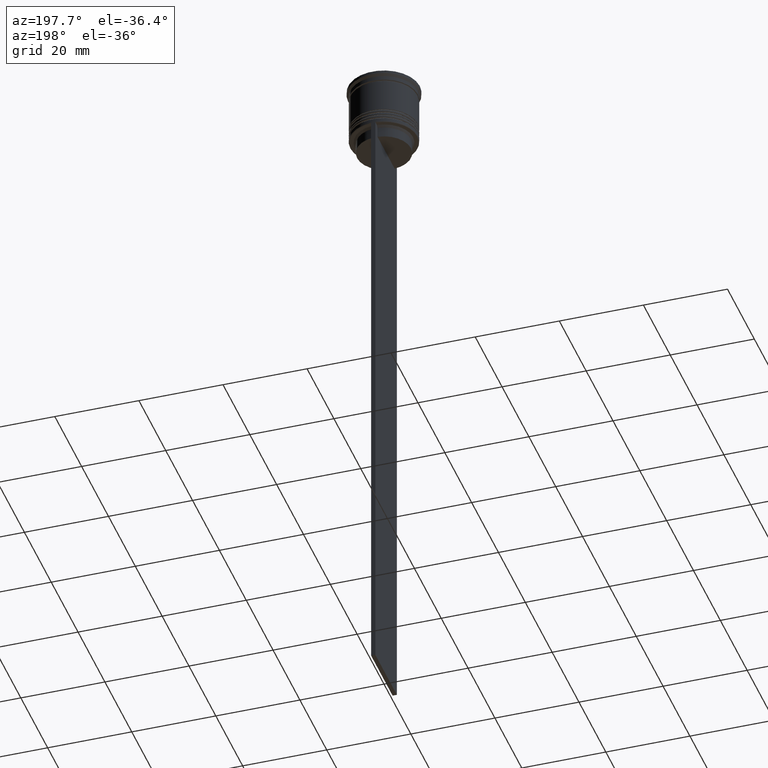
[diagram: clean part render]
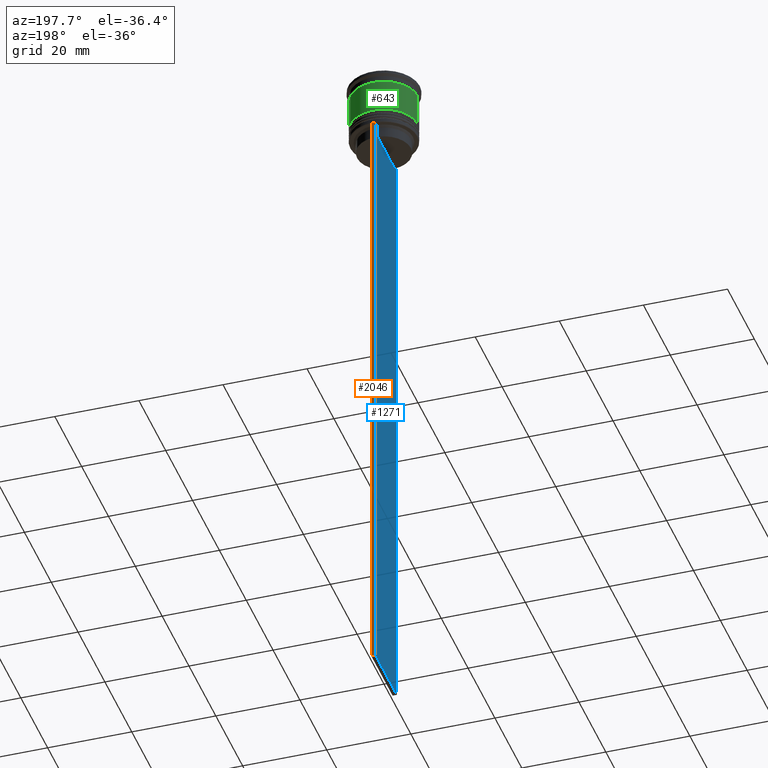
[diagram: same view with three faces highlighted in distinct colors, each labeled with its STEP entity id]
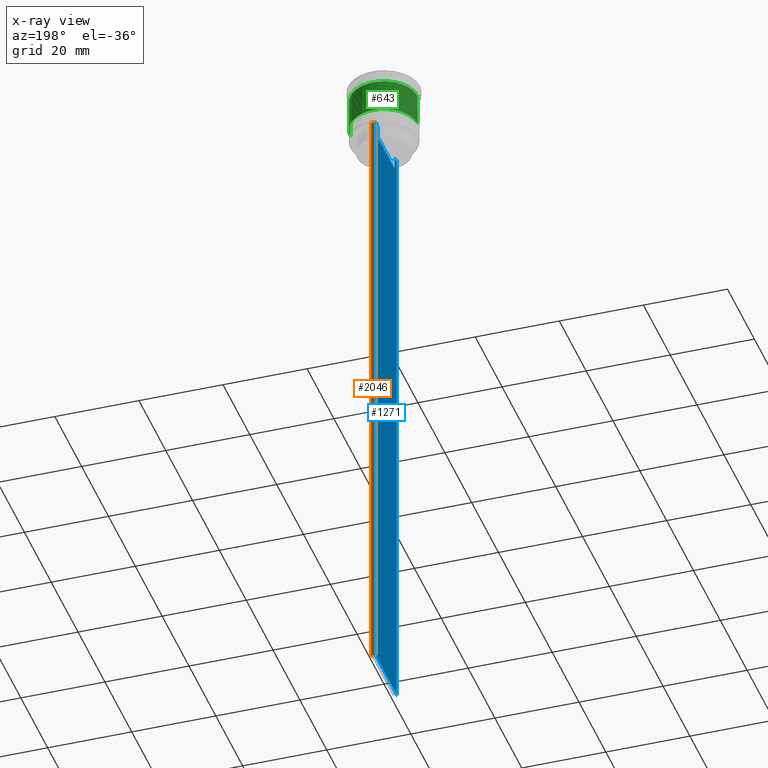
[diagram: x-ray of the same camera — body ghosted, the three highlighted faces saturated]
A machine part, auxiliary view with three faces highlighted in distinct colors.
The next image is the same camera in x-ray (body ghosted, the three faces saturated) — at least one of them is partly hidden behind the body in this view.
Their STEP definitions:

[orange] entity #2046 — the highlighted planar face has unit normal (0, -1, -0).
#31 = EDGE_LOOP ( 'NONE', ( #574, #2105, #1351, #553 ) ) ;
#54 = CARTESIAN_POINT ( 'NONE',  ( -0.4999999999999998890, 7.999999999999996447, -163.9999999999999716 ) ) ;
#85 = EDGE_CURVE ( 'NONE', #1786, #2098, #955, .T. ) ;
#178 = DIRECTION ( 'NONE',  ( 0.000000000000000000, -1.000000000000000000, -0.000000000000000000 ) ) ;
#374 = CARTESIAN_POINT ( 'NONE',  ( 0.5000000000000001110, 7.999999999999996447, -14.00000000000000178 ) ) ;
#388 = CARTESIAN_POINT ( 'NONE',  ( 0.5000000000000001110, 7.999999999999996447, -163.9999999999999716 ) ) ;
#551 = DIRECTION ( 'NONE',  ( 0.000000000000000000, 0.000000000000000000, -1.000000000000000000 ) ) ;
#553 = ORIENTED_EDGE ( 'NONE', *, *, #85, .T. ) ;
#574 = ORIENTED_EDGE ( 'NONE', *, *, #2003, .F. ) ;
#693 = AXIS2_PLACEMENT_3D ( 'NONE', #2467, #178, #551 ) ;
#936 = FACE_OUTER_BOUND ( 'NONE', #31, .T. ) ;
#955 = LINE ( 'NONE', #388, #1925 ) ;
#969 = LINE ( 'NONE', #1354, #1897 ) ;
#974 = CARTESIAN_POINT ( 'NONE',  ( 0.5000000000000001110, 7.999999999999996447, -14.00000000000000178 ) ) ;
#977 = DIRECTION ( 'NONE',  ( 0.000000000000000000, 0.000000000000000000, -1.000000000000000000 ) ) ;
#1123 = VERTEX_POINT ( 'NONE', #974 ) ;
#1159 = DIRECTION ( 'NONE',  ( -1.000000000000000000, 0.000000000000000000, 0.000000000000000000 ) ) ;
#1237 = VERTEX_POINT ( 'NONE', #2017 ) ;
#1333 = LINE ( 'NONE', #1731, #2093 ) ;
#1351 = ORIENTED_EDGE ( 'NONE', *, *, #1517, .T. ) ;
#1354 = CARTESIAN_POINT ( 'NONE',  ( -0.4999999999999998890, 7.999999999999996447, 2.031219541881394530 ) ) ;
#1517 = EDGE_CURVE ( 'NONE', #1123, #1786, #1333, .T. ) ;
#1716 = PLANE ( 'NONE',  #693 ) ;
#1731 = CARTESIAN_POINT ( 'NONE',  ( 0.5000000000000001110, 7.999999999999996447, 2.031219541881394530 ) ) ;
#1786 = VERTEX_POINT ( 'NONE', #1844 ) ;
#1844 = CARTESIAN_POINT ( 'NONE',  ( 0.5000000000000001110, 7.999999999999996447, -163.9999999999999716 ) ) ;
#1897 = VECTOR ( 'NONE', #977, 1000.000000000000000 ) ;
#1925 = VECTOR ( 'NONE', #1159, 1000.000000000000000 ) ;
#2003 = EDGE_CURVE ( 'NONE', #1237, #2098, #969, .T. ) ;
#2017 = CARTESIAN_POINT ( 'NONE',  ( -0.4999999999999998890, 7.999999999999996447, -14.00000000000000178 ) ) ;
#2046 = ADVANCED_FACE ( 'NONE', ( #936 ), #1716, .F. ) ;
#2091 = DIRECTION ( 'NONE',  ( 1.000000000000000000, 0.000000000000000000, 0.000000000000000000 ) ) ;
#2093 = VECTOR ( 'NONE', #2116, 1000.000000000000000 ) ;
#2098 = VERTEX_POINT ( 'NONE', #54 ) ;
#2105 = ORIENTED_EDGE ( 'NONE', *, *, #2377, .T. ) ;
#2116 = DIRECTION ( 'NONE',  ( 0.000000000000000000, 0.000000000000000000, -1.000000000000000000 ) ) ;
#2178 = VECTOR ( 'NONE', #2091, 1000.000000000000000 ) ;
#2264 = LINE ( 'NONE', #374, #2178 ) ;
#2377 = EDGE_CURVE ( 'NONE', #1237, #1123, #2264, .T. ) ;
#2467 = CARTESIAN_POINT ( 'NONE',  ( 0.5000000000000001110, 7.999999999999996447, 2.031219541881394530 ) ) ;

[blue] entity #1271 — the highlighted planar face has unit normal (-1, 0, 0).
#27 = VECTOR ( 'NONE', #1017, 1000.000000000000000 ) ;
#35 = ORIENTED_EDGE ( 'NONE', *, *, #272, .F. ) ;
#54 = CARTESIAN_POINT ( 'NONE',  ( -0.4999999999999998890, 7.999999999999996447, -163.9999999999999716 ) ) ;
#125 = EDGE_CURVE ( 'NONE', #2366, #274, #523, .T. ) ;
#133 = ORIENTED_EDGE ( 'NONE', *, *, #841, .F. ) ;
#138 = LINE ( 'NONE', #1306, #2253 ) ;
#240 = CARTESIAN_POINT ( 'NONE',  ( -0.4999999999999998890, 7.884161337770806632, -14.00000000000000178 ) ) ;
#249 = LINE ( 'NONE', #2002, #1334 ) ;
#272 = EDGE_CURVE ( 'NONE', #833, #2013, #2142, .T. ) ;
#274 = VERTEX_POINT ( 'NONE', #2299 ) ;
#276 = DIRECTION ( 'NONE',  ( 0.000000000000000000, 0.000000000000000000, 1.000000000000000000 ) ) ;
#278 = EDGE_CURVE ( 'NONE', #1237, #1230, #352, .T. ) ;
#281 = ORIENTED_EDGE ( 'NONE', *, *, #382, .F. ) ;
#311 = CARTESIAN_POINT ( 'NONE',  ( -0.4999999999999998890, 6.380438856379708312, 0.000000000000000000 ) ) ;
#327 = CARTESIAN_POINT ( 'NONE',  ( -0.4999999999999998890, -6.380438856379708312, -14.50000000000000000 ) ) ;
#352 = LINE ( 'NONE', #1534, #761 ) ;
#382 = EDGE_CURVE ( 'NONE', #1230, #2396, #1600, .T. ) ;
#495 = CARTESIAN_POINT ( 'NONE',  ( -0.4999999999999998890, -6.380438856379708312, 0.000000000000000000 ) ) ;
#523 = LINE ( 'NONE', #534, #1443 ) ;
#524 = EDGE_CURVE ( 'NONE', #1625, #753, #2406, .T. ) ;
#525 = CARTESIAN_POINT ( 'NONE',  ( -0.4999999999999998890, -6.547597841511246131, -14.33335192438652328 ) ) ;
#534 = CARTESIAN_POINT ( 'NONE',  ( -0.4999999999999998890, -8.000000000000003553, -14.00000000000000178 ) ) ;
#548 = VECTOR ( 'NONE', #1922, 1000.000000000000000 ) ;
#568 = CARTESIAN_POINT ( 'NONE',  ( -0.4999999999999998890, 6.881860213634098500, -14.00000000000000178 ) ) ;
#584 = ORIENTED_EDGE ( 'NONE', *, *, #2266, .F. ) ;
#611 = B_SPLINE_CURVE_WITH_KNOTS ( 'NONE', 3,
 ( #327, #525, #909, #1668 ),
 .UNSPECIFIED., .F., .F.,
 ( 4, 4 ),
 ( 0.02996184199614749730, 0.03067452609193703841 ),
 .UNSPECIFIED. ) ;
#613 = DIRECTION ( 'NONE',  ( 0.000000000000000000, 1.000000000000000000, 0.000000000000000000 ) ) ;
#620 = EDGE_CURVE ( 'NONE', #882, #2366, #611, .T. ) ;
#683 = ORIENTED_EDGE ( 'NONE', *, *, #620, .F. ) ;
#698 = LINE ( 'NONE', #495, #2221 ) ;
#700 = DIRECTION ( 'NONE',  ( 0.000000000000000000, 0.000000000000000000, -1.000000000000000000 ) ) ;
#705 = EDGE_CURVE ( 'NONE', #2396, #1625, #2346, .T. ) ;
#743 = ORIENTED_EDGE ( 'NONE', *, *, #1680, .F. ) ;
#753 = VERTEX_POINT ( 'NONE', #2095 ) ;
#756 = ORIENTED_EDGE ( 'NONE', *, *, #2003, .T. ) ;
#761 = VECTOR ( 'NONE', #1562, 1000.000000000000000 ) ;
#829 = FACE_OUTER_BOUND ( 'NONE', #2381, .T. ) ;
#833 = VERTEX_POINT ( 'NONE', #1057 ) ;
#841 = EDGE_CURVE ( 'NONE', #2013, #2098, #1793, .T. ) ;
#851 = CARTESIAN_POINT ( 'NONE',  ( -0.4999999999999998890, -8.000000000000003553, -14.00000000000000178 ) ) ;
#882 = VERTEX_POINT ( 'NONE', #1951 ) ;
#909 = CARTESIAN_POINT ( 'NONE',  ( -0.4999999999999998890, -6.714736947305992132, -14.16668390685738999 ) ) ;
#912 = DIRECTION ( 'NONE',  ( 0.000000000000000000, -1.000000000000000000, 0.000000000000000000 ) ) ;
#969 = LINE ( 'NONE', #1354, #1897 ) ;
#977 = DIRECTION ( 'NONE',  ( 0.000000000000000000, 0.000000000000000000, -1.000000000000000000 ) ) ;
#1017 = DIRECTION ( 'NONE',  ( 0.000000000000000000, -1.000000000000000000, 0.000000000000000000 ) ) ;
#1057 = CARTESIAN_POINT ( 'NONE',  ( -0.4999999999999998890, -8.000000000000003553, -14.00000000000000178 ) ) ;
#1129 = CARTESIAN_POINT ( 'NONE',  ( -0.4999999999999998890, 6.881860213634098500, -14.00000000000000178 ) ) ;
#1138 = CARTESIAN_POINT ( 'NONE',  ( -0.4999999999999998890, 6.380438856379708312, -14.50000000000000000 ) ) ;
#1170 = CARTESIAN_POINT ( 'NONE',  ( -0.4999999999999998890, 6.547597841304911626, -14.33335192459222718 ) ) ;
#1199 = VERTEX_POINT ( 'NONE', #2118 ) ;
#1223 = ORIENTED_EDGE ( 'NONE', *, *, #1409, .F. ) ;
#1225 = ORIENTED_EDGE ( 'NONE', *, *, #524, .F. ) ;
#1230 = VERTEX_POINT ( 'NONE', #240 ) ;
#1237 = VERTEX_POINT ( 'NONE', #2017 ) ;
#1271 = ADVANCED_FACE ( 'NONE', ( #829 ), #2007, .T. ) ;
#1306 = CARTESIAN_POINT ( 'NONE',  ( -0.4999999999999998890, 6.399999999999999467, -17.00000000000000000 ) ) ;
#1310 = DIRECTION ( 'NONE',  ( 0.000000000000000000, -1.000000000000000000, 0.000000000000000000 ) ) ;
#1323 = CARTESIAN_POINT ( 'NONE',  ( -0.4999999999999998890, -6.881860213634098500, -14.00000000000000178 ) ) ;
#1334 = VECTOR ( 'NONE', #2186, 1000.000000000000000 ) ;
#1354 = CARTESIAN_POINT ( 'NONE',  ( -0.4999999999999998890, 7.999999999999996447, 2.031219541881394530 ) ) ;
#1409 = EDGE_CURVE ( 'NONE', #753, #1199, #138, .T. ) ;
#1443 = VECTOR ( 'NONE', #1310, 1000.000000000000000 ) ;
#1534 = CARTESIAN_POINT ( 'NONE',  ( -0.4999999999999998890, -8.000000000000003553, -14.00000000000000178 ) ) ;
#1562 = DIRECTION ( 'NONE',  ( 0.000000000000000000, -1.000000000000000000, 0.000000000000000000 ) ) ;
#1600 = LINE ( 'NONE', #851, #27 ) ;
#1625 = VERTEX_POINT ( 'NONE', #1138 ) ;
#1668 = CARTESIAN_POINT ( 'NONE',  ( -0.4999999999999998890, -6.881860213634098500, -14.00000000000000178 ) ) ;
#1680 = EDGE_CURVE ( 'NONE', #274, #833, #249, .T. ) ;
#1715 = CARTESIAN_POINT ( 'NONE',  ( -0.4999999999999998890, 6.380438856379708312, -14.50000000000000000 ) ) ;
#1747 = CARTESIAN_POINT ( 'NONE',  ( -0.4999999999999998890, -8.000000000000003553, 2.031219541881394530 ) ) ;
#1793 = LINE ( 'NONE', #2329, #2041 ) ;
#1897 = VECTOR ( 'NONE', #977, 1000.000000000000000 ) ;
#1922 = DIRECTION ( 'NONE',  ( 0.000000000000000000, 0.000000000000000000, -1.000000000000000000 ) ) ;
#1951 = CARTESIAN_POINT ( 'NONE',  ( -0.4999999999999998890, -6.380438856379708312, -14.50000000000000000 ) ) ;
#1982 = DIRECTION ( 'NONE',  ( -1.000000000000000000, 0.000000000000000000, 0.000000000000000000 ) ) ;
#1984 = ORIENTED_EDGE ( 'NONE', *, *, #125, .F. ) ;
#1993 = CARTESIAN_POINT ( 'NONE',  ( -0.4999999999999998890, -8.000000000000003553, 2.031219541881394530 ) ) ;
#2002 = CARTESIAN_POINT ( 'NONE',  ( -0.4999999999999998890, -8.000000000000003553, -14.00000000000000178 ) ) ;
#2003 = EDGE_CURVE ( 'NONE', #1237, #2098, #969, .T. ) ;
#2006 = AXIS2_PLACEMENT_3D ( 'NONE', #1993, #1982, #276 ) ;
#2007 = PLANE ( 'NONE',  #2006 ) ;
#2013 = VERTEX_POINT ( 'NONE', #2279 ) ;
#2017 = CARTESIAN_POINT ( 'NONE',  ( -0.4999999999999998890, 7.999999999999996447, -14.00000000000000178 ) ) ;
#2041 = VECTOR ( 'NONE', #613, 1000.000000000000000 ) ;
#2085 = VECTOR ( 'NONE', #700, 1000.000000000000000 ) ;
#2095 = CARTESIAN_POINT ( 'NONE',  ( -0.4999999999999998890, 6.380438856379708312, -17.00000000000000000 ) ) ;
#2098 = VERTEX_POINT ( 'NONE', #54 ) ;
#2118 = CARTESIAN_POINT ( 'NONE',  ( -0.4999999999999998890, -6.380438856379708312, -17.00000000000000000 ) ) ;
#2142 = LINE ( 'NONE', #1747, #548 ) ;
#2186 = DIRECTION ( 'NONE',  ( 0.000000000000000000, -1.000000000000000000, 0.000000000000000000 ) ) ;
#2221 = VECTOR ( 'NONE', #2234, 1000.000000000000000 ) ;
#2234 = DIRECTION ( 'NONE',  ( -0.000000000000000000, -0.000000000000000000, 1.000000000000000000 ) ) ;
#2253 = VECTOR ( 'NONE', #912, 1000.000000000000000 ) ;
#2266 = EDGE_CURVE ( 'NONE', #1199, #882, #698, .T. ) ;
#2278 = CARTESIAN_POINT ( 'NONE',  ( -0.4999999999999998890, 6.714736947114692711, -14.16668390704818847 ) ) ;
#2279 = CARTESIAN_POINT ( 'NONE',  ( -0.4999999999999998890, -8.000000000000003553, -163.9999999999999716 ) ) ;
#2286 = ORIENTED_EDGE ( 'NONE', *, *, #278, .F. ) ;
#2299 = CARTESIAN_POINT ( 'NONE',  ( -0.4999999999999998890, -7.884161337770806632, -14.00000000000000178 ) ) ;
#2329 = CARTESIAN_POINT ( 'NONE',  ( -0.4999999999999998890, -8.000000000000003553, -163.9999999999999716 ) ) ;
#2346 = B_SPLINE_CURVE_WITH_KNOTS ( 'NONE', 3,
 ( #568, #2278, #1170, #1715 ),
 .UNSPECIFIED., .F., .F.,
 ( 4, 4 ),
 ( 0.01172465562756038263, 0.01243276816391822651 ),
 .UNSPECIFIED. ) ;
#2366 = VERTEX_POINT ( 'NONE', #1323 ) ;
#2381 = EDGE_LOOP ( 'NONE', ( #2476, #281, #2286, #756, #133, #35, #743, #1984, #683, #584, #1223, #1225 ) ) ;
#2396 = VERTEX_POINT ( 'NONE', #1129 ) ;
#2406 = LINE ( 'NONE', #311, #2085 ) ;
#2476 = ORIENTED_EDGE ( 'NONE', *, *, #705, .F. ) ;

[green] entity #643 — the highlighted cylindrical surface (edge-blend (fillet) strip) has radius 8 mm, axis along (-0, -0, 1).
#29 = AXIS2_PLACEMENT_3D ( 'NONE', #207, #976, #1575 ) ;
#207 = CARTESIAN_POINT ( 'NONE',  ( 0.000000000000000000, 0.000000000000000000, -2.700000000000001510 ) ) ;
#260 = VERTEX_POINT ( 'NONE', #1149 ) ;
#279 = VECTOR ( 'NONE', #445, 1000.000000000000000 ) ;
#298 = ORIENTED_EDGE ( 'NONE', *, *, #1876, .F. ) ;
#392 = ORIENTED_EDGE ( 'NONE', *, *, #2481, .T. ) ;
#445 = DIRECTION ( 'NONE',  ( -0.000000000000000000, -0.000000000000000000, 1.000000000000000000 ) ) ;
#470 = CIRCLE ( 'NONE', #29, 7.999999999999998224 ) ;
#581 = EDGE_LOOP ( 'NONE', ( #677, #392, #1623, #298 ) ) ;
#643 = ADVANCED_FACE ( 'NONE', ( #1251 ), #1843, .T. ) ;
#644 = CIRCLE ( 'NONE', #1928, 8.000000000000001776 ) ;
#677 = ORIENTED_EDGE ( 'NONE', *, *, #721, .T. ) ;
#721 = EDGE_CURVE ( 'NONE', #2357, #1212, #644, .T. ) ;
#738 = LINE ( 'NONE', #1189, #279 ) ;
#762 = DIRECTION ( 'NONE',  ( -0.000000000000000000, -0.000000000000000000, 1.000000000000000000 ) ) ;
#869 = VERTEX_POINT ( 'NONE', #2157 ) ;
#877 = CARTESIAN_POINT ( 'NONE',  ( -8.000000000000001776, 9.797174393178827630E-16, -10.50000000000000000 ) ) ;
#890 = EDGE_CURVE ( 'NONE', #869, #260, #470, .T. ) ;
#921 = AXIS2_PLACEMENT_3D ( 'NONE', #2421, #762, #1754 ) ;
#922 = DIRECTION ( 'NONE',  ( 1.000000000000000000, 0.000000000000000000, 0.000000000000000000 ) ) ;
#944 = DIRECTION ( 'NONE',  ( -0.000000000000000000, -0.000000000000000000, 1.000000000000000000 ) ) ;
#976 = DIRECTION ( 'NONE',  ( -0.000000000000000000, -0.000000000000000000, 1.000000000000000000 ) ) ;
#1149 = CARTESIAN_POINT ( 'NONE',  ( -7.999999999999998224, 9.797174393178823685E-16, -2.700000000000001510 ) ) ;
#1189 = CARTESIAN_POINT ( 'NONE',  ( -8.000000000000000000, 9.797174393178825657E-16, 0.000000000000000000 ) ) ;
#1212 = VERTEX_POINT ( 'NONE', #877 ) ;
#1251 = FACE_OUTER_BOUND ( 'NONE', #581, .T. ) ;
#1305 = LINE ( 'NONE', #2432, #1497 ) ;
#1497 = VECTOR ( 'NONE', #2238, 1000.000000000000000 ) ;
#1511 = CARTESIAN_POINT ( 'NONE',  ( 8.000000000000001776, 0.000000000000000000, -10.50000000000000000 ) ) ;
#1575 = DIRECTION ( 'NONE',  ( 1.000000000000000000, 0.000000000000000000, 0.000000000000000000 ) ) ;
#1623 = ORIENTED_EDGE ( 'NONE', *, *, #890, .F. ) ;
#1754 = DIRECTION ( 'NONE',  ( 1.000000000000000000, 0.000000000000000000, 0.000000000000000000 ) ) ;
#1843 = CYLINDRICAL_SURFACE ( 'NONE', #921, 8.000000000000000000 ) ;
#1876 = EDGE_CURVE ( 'NONE', #2357, #869, #1305, .T. ) ;
#1928 = AXIS2_PLACEMENT_3D ( 'NONE', #2111, #944, #922 ) ;
#2111 = CARTESIAN_POINT ( 'NONE',  ( 0.000000000000000000, 0.000000000000000000, -10.50000000000000000 ) ) ;
#2157 = CARTESIAN_POINT ( 'NONE',  ( 7.999999999999998224, 0.000000000000000000, -2.700000000000001510 ) ) ;
#2238 = DIRECTION ( 'NONE',  ( -0.000000000000000000, -0.000000000000000000, 1.000000000000000000 ) ) ;
#2357 = VERTEX_POINT ( 'NONE', #1511 ) ;
#2421 = CARTESIAN_POINT ( 'NONE',  ( 0.000000000000000000, 0.000000000000000000, 0.000000000000000000 ) ) ;
#2432 = CARTESIAN_POINT ( 'NONE',  ( 8.000000000000000000, 0.000000000000000000, 0.000000000000000000 ) ) ;
#2481 = EDGE_CURVE ( 'NONE', #1212, #260, #738, .T. ) ;